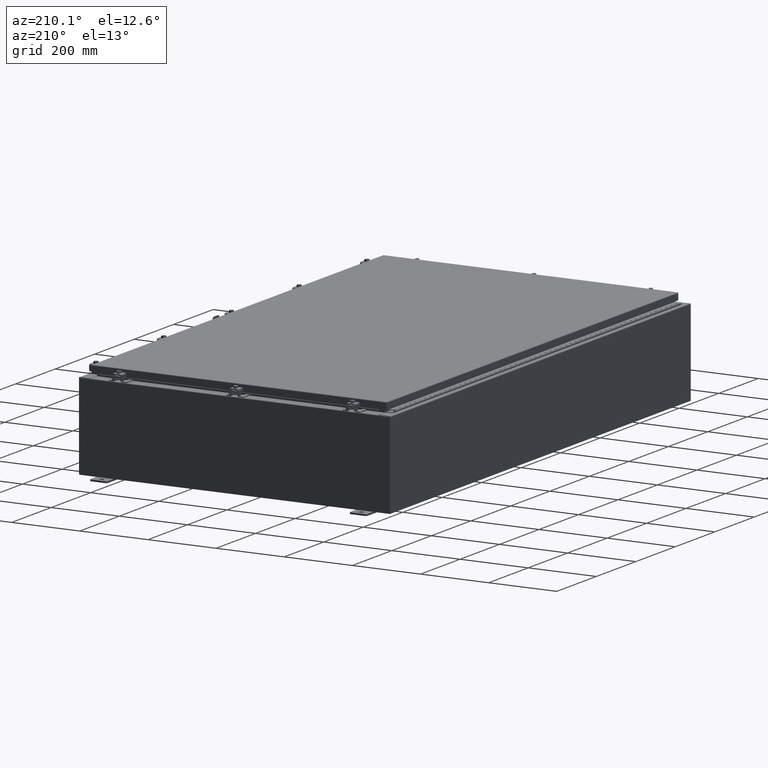
[diagram: clean part render]
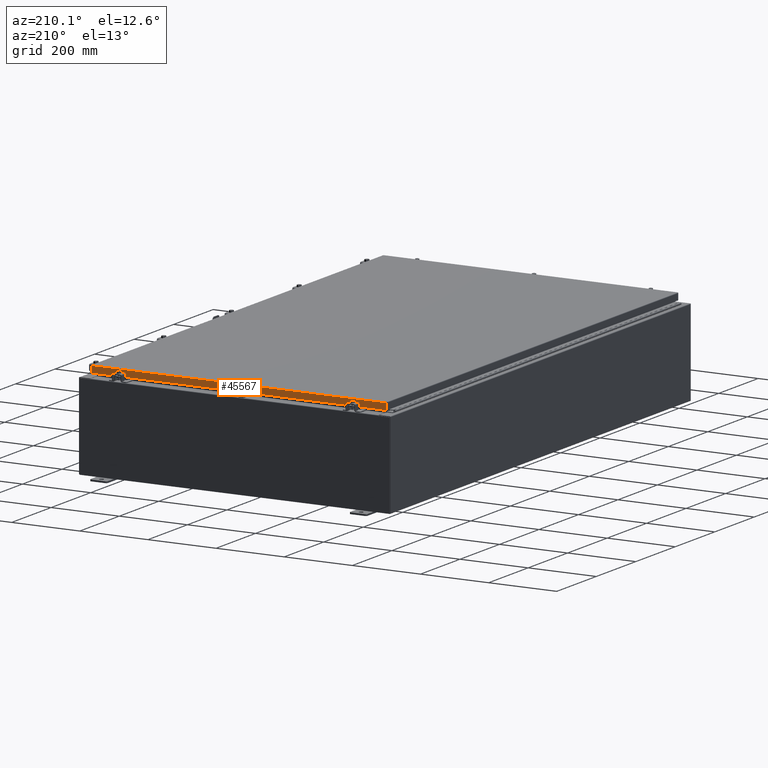
[diagram: same view with one face highlighted and labeled with its STEP entity id]
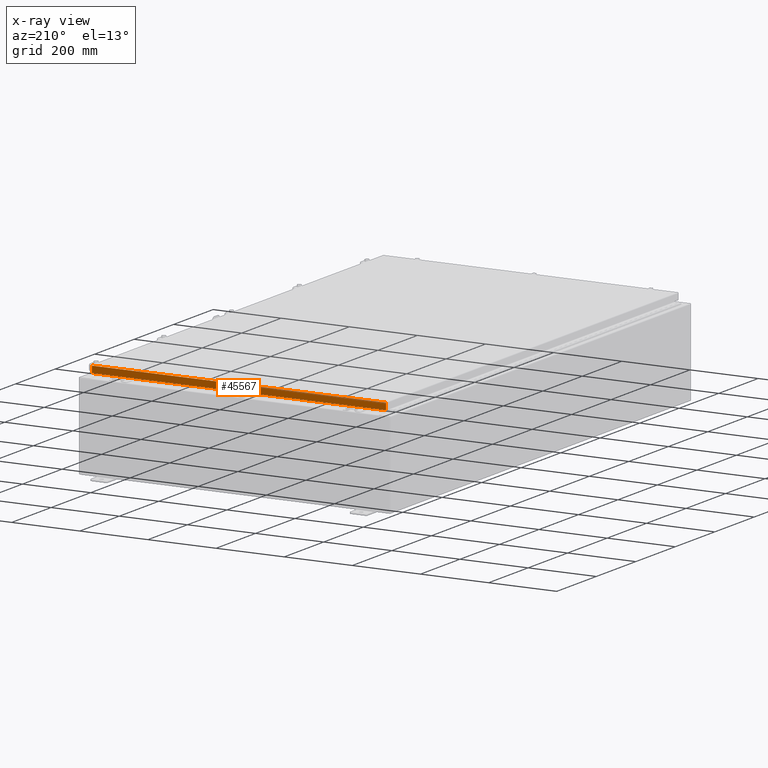
[diagram: x-ray of the same camera — body ghosted, the highlighted face saturated]
A machine part, auxiliary view. The second image highlights one B-rep face of the part: STEP entity #45567.
The next image is the same camera in x-ray: the body ghosted, the highlighted face saturated — about 0% of this face is hidden behind the body in this view.
In plain terms, the highlighted planar face has unit normal (0, -1, -0).
Its self-contained STEP definition (entity closure, byte-faithful):
#4457 = DIRECTION ( 'NONE',  ( 1.000000000000000000, -0.0000000000000000000, 1.239713195391617400E-016 ) ) ;
#6512 = VECTOR ( 'NONE', #53041, 39.37007874015748100 ) ;
#6570 = LINE ( 'NONE', #53737, #18031 ) ;
#8447 = EDGE_CURVE ( 'NONE', #53326, #32971, #59565, .T. ) ;
#10132 = DIRECTION ( 'NONE',  ( 1.000000000000000000, -0.0000000000000000000, -0.0000000000000000000 ) ) ;
#10145 = CARTESIAN_POINT ( 'NONE',  ( -16.23915786437626400, 29.09400000000000100, -0.8500000000000037500 ) ) ;
#10881 = CARTESIAN_POINT ( 'NONE',  ( 16.98915786437627100, 29.09400000000000100, 1.642858579540487400E-013 ) ) ;
#15340 = CARTESIAN_POINT ( 'NONE',  ( -16.98915786437626400, 29.09400000000000100, -0.08769999999999549000 ) ) ;
#16656 = LINE ( 'NONE', #62721, #53979 ) ;
#17290 = ORIENTED_EDGE ( 'NONE', *, *, #26085, .T. ) ;
#17911 = ORIENTED_EDGE ( 'NONE', *, *, #23607, .F. ) ;
#18031 = VECTOR ( 'NONE', #39037, 39.37007874015748100 ) ;
#20585 = CARTESIAN_POINT ( 'NONE',  ( 16.98915786437627100, 29.09400000000000100, -0.08769999999999547600 ) ) ;
#21639 = VECTOR ( 'NONE', #40053, 39.37007874015748100 ) ;
#22722 = EDGE_LOOP ( 'NONE', ( #62469, #17290, #17911, #28366, #27472, #38905 ) ) ;
#23607 = EDGE_CURVE ( 'NONE', #32971, #39384, #62969, .T. ) ;
#24245 = VECTOR ( 'NONE', #32894, 39.37007874015748100 ) ;
#24739 = CARTESIAN_POINT ( 'NONE',  ( 16.23915786437627100, 29.09400000000000100, -0.8500000000000037500 ) ) ;
#24924 = VERTEX_POINT ( 'NONE', #20585 ) ;
#25268 = CARTESIAN_POINT ( 'NONE',  ( -16.23915786437625600, 29.09400000000000100, -0.8500000000000037500 ) ) ;
#26085 = EDGE_CURVE ( 'NONE', #24924, #39384, #58917, .T. ) ;
#27472 = ORIENTED_EDGE ( 'NONE', *, *, #52524, .F. ) ;
#27968 = CARTESIAN_POINT ( 'NONE',  ( -17.07799999999999600, 29.09400000000000500, -0.8500000000000038600 ) ) ;
#28366 = ORIENTED_EDGE ( 'NONE', *, *, #8447, .F. ) ;
#32894 = DIRECTION ( 'NONE',  ( 1.000000000000000000, -0.0000000000000000000, 1.239713195391617400E-016 ) ) ;
#32971 = VERTEX_POINT ( 'NONE', #24739 ) ;
#33208 = DIRECTION ( 'NONE',  ( 0.0000000000000000000, 5.637761885544689500E-015, -1.000000000000000000 ) ) ;
#34512 = CARTESIAN_POINT ( 'NONE',  ( -17.07799999999999600, 29.09400000000000100, -0.08769999999999547600 ) ) ;
#37588 = CARTESIAN_POINT ( 'NONE',  ( 16.98915786437627100, 29.09400000000000500, -0.8499999999999996400 ) ) ;
#38905 = ORIENTED_EDGE ( 'NONE', *, *, #46338, .F. ) ;
#39037 = DIRECTION ( 'NONE',  ( -0.0000000000000000000, 5.637761885544689500E-015, -1.000000000000000000 ) ) ;
#39384 = VERTEX_POINT ( 'NONE', #37588 ) ;
#40053 = DIRECTION ( 'NONE',  ( 0.0000000000000000000, 5.637761885544689500E-015, -1.000000000000000000 ) ) ;
#41712 = VERTEX_POINT ( 'NONE', #60047 ) ;
#45256 = VERTEX_POINT ( 'NONE', #15340 ) ;
#45567 = ADVANCED_FACE ( 'NONE', ( #57717 ), #57450, .F. ) ;
#46338 = EDGE_CURVE ( 'NONE', #45256, #41712, #6570, .T. ) ;
#46828 = EDGE_CURVE ( 'NONE', #24924, #45256, #46891, .T. ) ;
#46891 = LINE ( 'NONE', #34512, #6512 ) ;
#47638 = CARTESIAN_POINT ( 'NONE',  ( -2.033440117909712900E-029, 29.09400000000000100, 1.642858579540487400E-013 ) ) ;
#52524 = EDGE_CURVE ( 'NONE', #41712, #53326, #16656, .T. ) ;
#53041 = DIRECTION ( 'NONE',  ( -1.000000000000000000, -6.989207801985677300E-031, -3.922586267643528000E-045 ) ) ;
#53326 = VERTEX_POINT ( 'NONE', #25268 ) ;
#53737 = CARTESIAN_POINT ( 'NONE',  ( -16.98915786437626400, 29.09400000000000100, -0.07469999999999958600 ) ) ;
#53979 = VECTOR ( 'NONE', #4457, 39.37007874015748100 ) ;
#57450 = PLANE ( 'NONE',  #60685 ) ;
#57717 = FACE_OUTER_BOUND ( 'NONE', #22722, .T. ) ;
#58917 = LINE ( 'NONE', #10881, #21639 ) ;
#59565 = LINE ( 'NONE', #10145, #61064 ) ;
#60047 = CARTESIAN_POINT ( 'NONE',  ( -16.98915786437626400, 29.09400000000000500, -0.8500000000000038600 ) ) ;
#60685 = AXIS2_PLACEMENT_3D ( 'NONE', #47638, #62294, #33208 ) ;
#61064 = VECTOR ( 'NONE', #10132, 39.37007874015748100 ) ;
#62294 = DIRECTION ( 'NONE',  ( 6.989207801985676400E-031, -1.000000000000000000, -5.637761885544689500E-015 ) ) ;
#62469 = ORIENTED_EDGE ( 'NONE', *, *, #46828, .F. ) ;
#62721 = CARTESIAN_POINT ( 'NONE',  ( -17.07799999999999600, 29.09400000000000500, -0.8500000000000038600 ) ) ;
#62969 = LINE ( 'NONE', #27968, #24245 ) ;